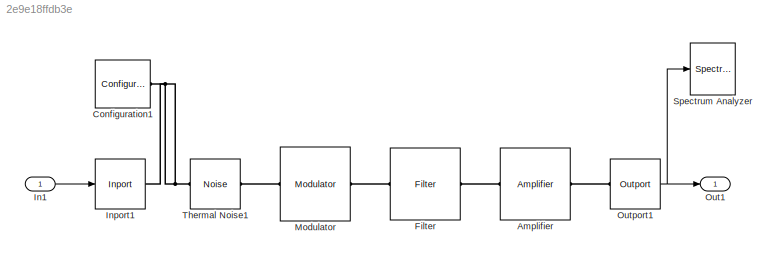
MODEL slx_2e9e18ffdb3e
KIND model
CONFIG AbsTol = auto
CONFIG EnableMultiTasking = off
CONFIG FixedStep = auto
CONFIG MaxStep = auto
CONFIG MinStep = auto
CONFIG RelTol = 1e-3
CONFIG SampleTimeConstraint = Unconstrained
CONFIG SolverName = VariableStepAuto
CONFIG StartTime = 0.0
CONFIG StopTime = 10.0
BLOCK [Reference] Amplifier  REF=simrfV2elements/Amplifier
  Ports = [0, 0, 0, 0, 0, 1, 1]
  SourceBlock = simrfV2elements/Amplifier
  SourceProductBaseCode = RB
  SourceType = Amplifier
BLOCK [Reference] Configuration1  REF=simrfV2util1/Configuration
  Ports = [0, 0, 0, 0, 0, 1]
  SourceBlock = simrfV2util1/Configuration
  SourceProductBaseCode = RB
  SourceType = Configuration
BLOCK [Reference] Filter  REF=simrfV2elements/Filter
  Ports = [0, 0, 0, 0, 0, 1, 1]
  SourceBlock = simrfV2elements/Filter
  SourceProductBaseCode = RB
  SourceType = Filter
  UserDataPersistent = on
BLOCK [Inport] In1
  Interpolate = off
  PortDimensions = 1
  SampleTime = 1e-06
  SignalType = complex
BLOCK [Reference] Inport1  REF=simrfV2util1/Inport
  Ports = [1, 0, 0, 0, 0, 0, 1]
  SourceBlock = simrfV2util1/Inport
  SourceProductBaseCode = RB
  SourceType = Inport
BLOCK [Reference] Modulator  REF=simrfV2systems/Modulator
  Ports = [0, 0, 0, 0, 0, 1, 1]
  SourceBlock = simrfV2systems/Modulator
  SourceProductBaseCode = RB
  SourceType = Modulator
BLOCK [Outport] Out1
  PortDimensions = 1
  SampleTime = 1e-06
BLOCK [Reference] Outport1  REF=simrfV2util1/Outport
  Ports = [0, 1, 0, 0, 0, 1]
  SourceBlock = simrfV2util1/Outport
  SourceProductBaseCode = RB
  SourceType = Outport
BLOCK [SpectrumAnalyzer] Spectrum Analyzer
  Ports = [1]
  ScopeSpecificationString = spbscopes.SpectrumAnalyzerBlockCfg('CurrentConfiguration', extmgr.ConfigurationSet(extmgr.Configuration('Core','General UI',true),extmgr.Configuration('Core','Source UI',true),extmgr.Configuration('Sources','WiredSimulink',true),extmgr.Configuration('Visuals','Spectrum',true,'AxesProperties',struct('Color',{[0 0 0],[0 0 0]},'XColor',{[0.686274509803922 0.686274509803922 0.686274509803922],[0.68627...<+1971ch>
BLOCK [Reference] Thermal Noise1  REF=simrfV2sources1/Noise
  Ports = [0, 0, 0, 0, 0, 1, 1]
  SourceBlock = simrfV2sources1/Noise
  SourceProductBaseCode = RB
  SourceType = Noise Source
LINE In1:1 -> Inport1:1
NET Outport1:1 -> Out1:1, Spectrum Analyzer:1
PLINE Amplifier:LConn1 -- Filter:RConn1
PLINE Amplifier:RConn1 -- Outport1:LConn1
PNET net1: Configuration1:LConn1 -- Inport1:RConn1 -- Thermal Noise1:RConn1
PLINE Filter:LConn1 -- Modulator:RConn1
PLINE Modulator:LConn1 -- Thermal Noise1:LConn1
note: NET lines group one-source signal fan-out (src -> all destinations, sorted); 1:1 wires keep LINE; PNET lines group multi-terminal physical nets as a canonical sorted terminal list (undirected conserving connections); 2-terminal nets keep the pairwise PLINE form
